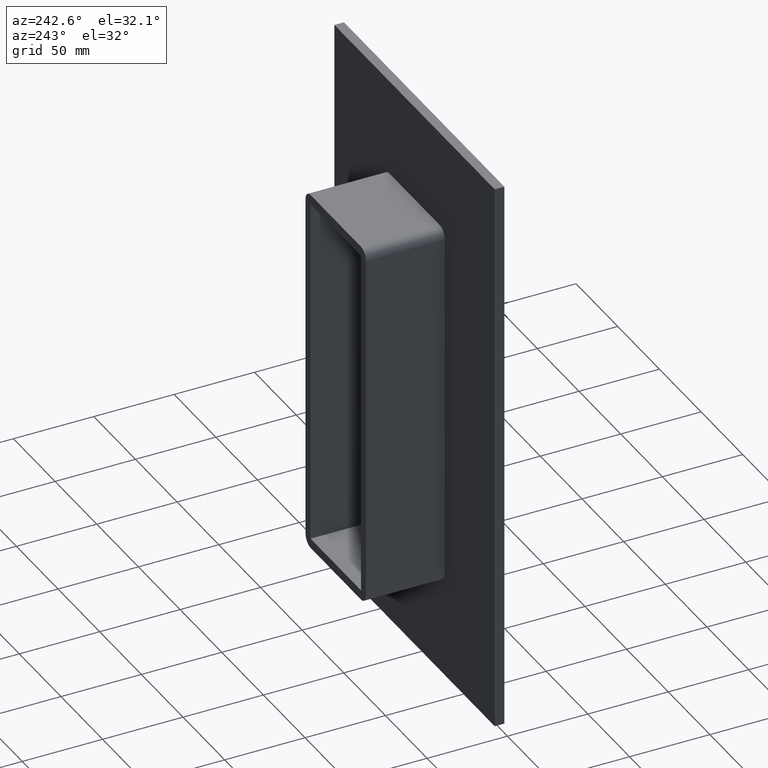
[diagram: clean part render]
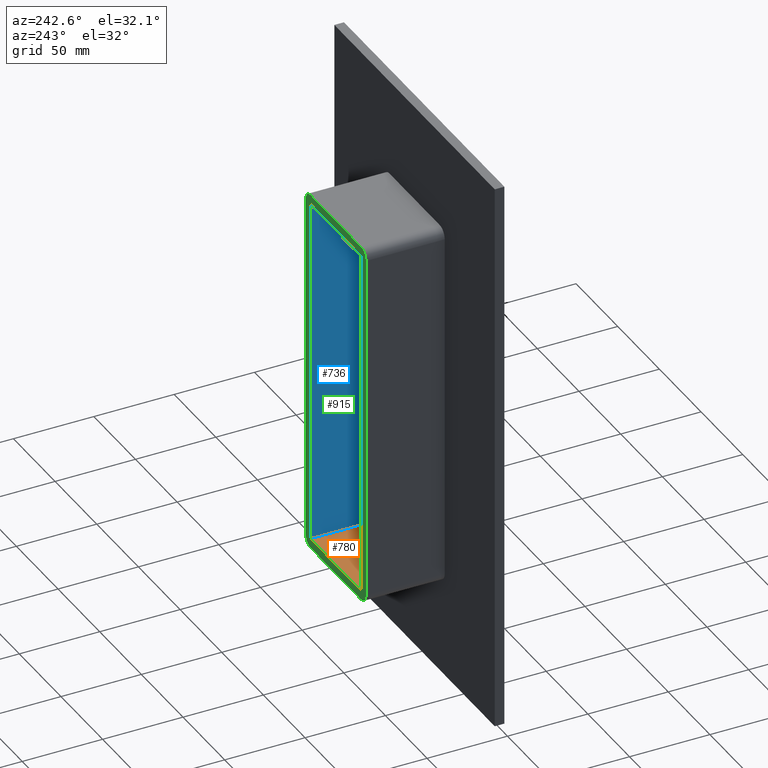
[diagram: same view with three faces highlighted in distinct colors, each labeled with its STEP entity id]
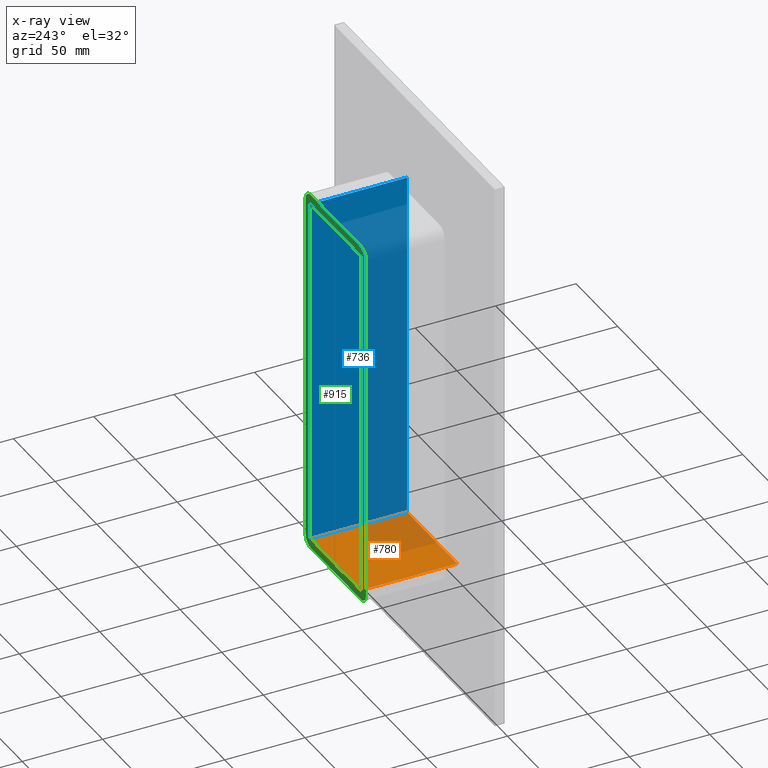
[diagram: x-ray of the same camera — body ghosted, the three highlighted faces saturated]
A machine part, auxiliary view with three faces highlighted in distinct colors.
The next image is the same camera in x-ray (body ghosted, the three faces saturated) — at least one of them is partly hidden behind the body in this view.
Their STEP definitions:

[orange] entity #780 — the highlighted planar face has unit normal (0, 0, -1).
#371=CARTESIAN_POINT('',(-30.249999999999986,-5.0,-109.0));
#372=VERTEX_POINT('',#371);
#379=CARTESIAN_POINT('',(-30.249999999999986,55.0,-109.0));
#380=VERTEX_POINT('',#379);
#381=CARTESIAN_POINT('',(-30.249999999999986,-5.0,-109.0));
#382=DIRECTION('',(0.0,1.0,0.0));
#383=VECTOR('',#382,60.0);
#384=LINE('',#381,#383);
#385=EDGE_CURVE('',#372,#380,#384,.T.);
#712=CARTESIAN_POINT('',(30.250000000000004,55.0,-109.0));
#713=VERTEX_POINT('',#712);
#720=CARTESIAN_POINT('',(30.250000000000004,-5.0,-109.0));
#721=VERTEX_POINT('',#720);
#722=CARTESIAN_POINT('',(30.250000000000004,55.0,-109.0));
#723=DIRECTION('',(0.0,-1.0,0.0));
#724=VECTOR('',#723,60.0);
#725=LINE('',#722,#724);
#726=EDGE_CURVE('',#713,#721,#725,.T.);
#759=CARTESIAN_POINT('',(30.250000000000004,0.0,-109.0));
#760=DIRECTION('',(0.0,0.0,-1.0));
#761=DIRECTION('',(-1.0,0.0,0.0));
#762=AXIS2_PLACEMENT_3D('',#759,#760,#761);
#763=PLANE('',#762);
#764=ORIENTED_EDGE('',*,*,#385,.F.);
#765=CARTESIAN_POINT('',(30.250000000000004,-5.0,-109.0));
#766=DIRECTION('',(-1.0,0.0,0.0));
#767=VECTOR('',#766,60.499999999999986);
#768=LINE('',#765,#767);
#769=EDGE_CURVE('',#721,#372,#768,.T.);
#770=ORIENTED_EDGE('',*,*,#769,.F.);
#771=ORIENTED_EDGE('',*,*,#726,.F.);
#772=CARTESIAN_POINT('',(-30.249999999999986,55.0,-109.0));
#773=DIRECTION('',(1.0,0.0,0.0));
#774=VECTOR('',#773,60.499999999999986);
#775=LINE('',#772,#774);
#776=EDGE_CURVE('',#380,#713,#775,.T.);
#777=ORIENTED_EDGE('',*,*,#776,.F.);
#778=EDGE_LOOP('',(#764,#770,#771,#777));
#779=FACE_OUTER_BOUND('',#778,.T.);
#780=ADVANCED_FACE('',(#779),#763,.F.);

[blue] entity #736 — the highlighted planar face has unit normal (1, 0, 0).
#697=CARTESIAN_POINT('',(30.250000000000004,0.0,109.00000000000003));
#698=DIRECTION('',(1.0,0.0,0.0));
#699=DIRECTION('',(0.0,0.0,-1.0));
#700=AXIS2_PLACEMENT_3D('',#697,#698,#699);
#701=PLANE('',#700);
#702=CARTESIAN_POINT('',(30.250000000000004,-5.0,109.00000000000004));
#703=VERTEX_POINT('',#702);
#704=CARTESIAN_POINT('',(30.250000000000004,55.0,109.00000000000004));
#705=VERTEX_POINT('',#704);
#706=CARTESIAN_POINT('',(30.250000000000004,-5.0,109.00000000000003));
#707=DIRECTION('',(0.0,1.0,0.0));
#708=VECTOR('',#707,60.0);
#709=LINE('',#706,#708);
#710=EDGE_CURVE('',#703,#705,#709,.T.);
#711=ORIENTED_EDGE('',*,*,#710,.T.);
#712=CARTESIAN_POINT('',(30.250000000000004,55.0,-109.0));
#713=VERTEX_POINT('',#712);
#714=CARTESIAN_POINT('',(30.250000000000004,55.0,-108.99999999999997));
#715=DIRECTION('',(0.0,0.0,1.0));
#716=VECTOR('',#715,218.0);
#717=LINE('',#714,#716);
#718=EDGE_CURVE('',#713,#705,#717,.T.);
#719=ORIENTED_EDGE('',*,*,#718,.F.);
#720=CARTESIAN_POINT('',(30.250000000000004,-5.0,-109.0));
#721=VERTEX_POINT('',#720);
#722=CARTESIAN_POINT('',(30.250000000000004,55.0,-109.0));
#723=DIRECTION('',(0.0,-1.0,0.0));
#724=VECTOR('',#723,60.0);
#725=LINE('',#722,#724);
#726=EDGE_CURVE('',#713,#721,#725,.T.);
#727=ORIENTED_EDGE('',*,*,#726,.T.);
#728=CARTESIAN_POINT('',(30.250000000000004,-5.0,109.00000000000004));
#729=DIRECTION('',(0.0,0.0,-1.0));
#730=VECTOR('',#729,218.0);
#731=LINE('',#728,#730);
#732=EDGE_CURVE('',#703,#721,#731,.T.);
#733=ORIENTED_EDGE('',*,*,#732,.F.);
#734=EDGE_LOOP('',(#711,#719,#727,#733));
#735=FACE_OUTER_BOUND('',#734,.T.);
#736=ADVANCED_FACE('',(#735),#701,.F.);

[green] entity #915 — the highlighted planar face has unit normal (0, 1, 0).
#363=CARTESIAN_POINT('',(-30.249999999999986,55.0,109.00000000000004));
#364=VERTEX_POINT('',#363);
#379=CARTESIAN_POINT('',(-30.249999999999986,55.0,-109.0));
#380=VERTEX_POINT('',#379);
#387=CARTESIAN_POINT('',(-30.249999999999986,55.0,109.00000000000001));
#388=DIRECTION('',(0.0,0.0,-1.0));
#389=VECTOR('',#388,218.0);
#390=LINE('',#387,#389);
#391=EDGE_CURVE('',#364,#380,#390,.T.);
#434=CARTESIAN_POINT('',(-36.25,55.0,-109.00000000000003));
#435=VERTEX_POINT('',#434);
#442=CARTESIAN_POINT('',(-30.249999999999986,55.0,-115.0));
#443=VERTEX_POINT('',#442);
#444=CARTESIAN_POINT('',(-30.249999999999986,55.0,-108.99999999999999));
#445=DIRECTION('',(0.0,1.0,0.0));
#446=DIRECTION('',(0.0,0.0,-1.0));
#447=AXIS2_PLACEMENT_3D('',#444,#445,#446);
#448=CIRCLE('',#447,6.000000000000014);
#449=EDGE_CURVE('',#443,#435,#448,.T.);
#490=CARTESIAN_POINT('',(-36.25,55.0,109.00000000000006));
#491=VERTEX_POINT('',#490);
#498=CARTESIAN_POINT('',(-36.25,55.0,-109.00000000000003));
#499=DIRECTION('',(0.0,0.0,1.0));
#500=VECTOR('',#499,218.00000000000009);
#501=LINE('',#498,#500);
#502=EDGE_CURVE('',#435,#491,#501,.T.);
#563=CARTESIAN_POINT('',(-30.249999999999986,55.0,115.00000000000003));
#564=VERTEX_POINT('',#563);
#571=CARTESIAN_POINT('',(-30.249999999999986,55.0,109.00000000000006));
#572=DIRECTION('',(0.0,1.0,0.0));
#573=DIRECTION('',(-1.0,0.0,0.0));
#574=AXIS2_PLACEMENT_3D('',#571,#572,#573);
#575=CIRCLE('',#574,6.000000000000014);
#576=EDGE_CURVE('',#491,#564,#575,.T.);
#637=CARTESIAN_POINT('',(30.249999999999986,55.0,115.00000000000003));
#638=VERTEX_POINT('',#637);
#645=CARTESIAN_POINT('',(-30.249999999999986,55.0,115.00000000000003));
#646=DIRECTION('',(1.0,0.0,0.0));
#647=VECTOR('',#646,60.499999999999972);
#648=LINE('',#645,#647);
#649=EDGE_CURVE('',#564,#638,#648,.T.);
#704=CARTESIAN_POINT('',(30.250000000000004,55.0,109.00000000000004));
#705=VERTEX_POINT('',#704);
#712=CARTESIAN_POINT('',(30.250000000000004,55.0,-109.0));
#713=VERTEX_POINT('',#712);
#714=CARTESIAN_POINT('',(30.250000000000004,55.0,-108.99999999999997));
#715=DIRECTION('',(0.0,0.0,1.0));
#716=VECTOR('',#715,218.0);
#717=LINE('',#714,#716);
#718=EDGE_CURVE('',#713,#705,#717,.T.);
#743=CARTESIAN_POINT('',(30.250000000000007,55.0,109.00000000000003));
#744=DIRECTION('',(-1.0,0.0,0.0));
#745=VECTOR('',#744,60.499999999999993);
#746=LINE('',#743,#745);
#747=EDGE_CURVE('',#705,#364,#746,.T.);
#772=CARTESIAN_POINT('',(-30.249999999999986,55.0,-109.0));
#773=DIRECTION('',(1.0,0.0,0.0));
#774=VECTOR('',#773,60.499999999999986);
#775=LINE('',#772,#774);
#776=EDGE_CURVE('',#380,#713,#775,.T.);
#809=CARTESIAN_POINT('',(36.25,55.0,109.00000000000006));
#810=VERTEX_POINT('',#809);
#817=CARTESIAN_POINT('',(30.249999999999986,55.0,109.00000000000006));
#818=DIRECTION('',(0.0,1.0,0.0));
#819=DIRECTION('',(0.0,0.0,1.0));
#820=AXIS2_PLACEMENT_3D('',#817,#818,#819);
#821=CIRCLE('',#820,6.000000000000014);
#822=EDGE_CURVE('',#638,#810,#821,.T.);
#835=CARTESIAN_POINT('',(30.249999999999986,55.0,-115.0));
#836=VERTEX_POINT('',#835);
#837=CARTESIAN_POINT('',(30.249999999999986,55.0,-114.99999999999999));
#838=DIRECTION('',(-1.0,0.0,0.0));
#839=VECTOR('',#838,60.499999999999972);
#840=LINE('',#837,#839);
#841=EDGE_CURVE('',#836,#443,#840,.T.);
#859=CARTESIAN_POINT('',(36.25,55.0,-109.00000000000003));
#860=VERTEX_POINT('',#859);
#861=CARTESIAN_POINT('',(30.249999999999986,55.0,-108.99999999999999));
#862=DIRECTION('',(0.0,1.0,0.0));
#863=DIRECTION('',(1.0,0.0,0.0));
#864=AXIS2_PLACEMENT_3D('',#861,#862,#863);
#865=CIRCLE('',#864,6.000000000000014);
#866=EDGE_CURVE('',#860,#836,#865,.T.);
#884=CARTESIAN_POINT('',(36.25,55.0,109.00000000000006));
#885=DIRECTION('',(0.0,0.0,-1.0));
#886=VECTOR('',#885,218.00000000000009);
#887=LINE('',#884,#886);
#888=EDGE_CURVE('',#810,#860,#887,.T.);
#894=CARTESIAN_POINT('',(0.0,55.0,3.073023E-014));
#895=DIRECTION('',(0.0,1.0,0.0));
#896=DIRECTION('',(0.0,0.0,1.0));
#897=AXIS2_PLACEMENT_3D('',#894,#895,#896);
#898=PLANE('',#897);
#899=ORIENTED_EDGE('',*,*,#888,.T.);
#900=ORIENTED_EDGE('',*,*,#866,.T.);
#901=ORIENTED_EDGE('',*,*,#841,.T.);
#902=ORIENTED_EDGE('',*,*,#449,.T.);
#903=ORIENTED_EDGE('',*,*,#502,.T.);
#904=ORIENTED_EDGE('',*,*,#576,.T.);
#905=ORIENTED_EDGE('',*,*,#649,.T.);
#906=ORIENTED_EDGE('',*,*,#822,.T.);
#907=EDGE_LOOP('',(#899,#900,#901,#902,#903,#904,#905,#906));
#908=FACE_OUTER_BOUND('',#907,.T.);
#909=ORIENTED_EDGE('',*,*,#718,.T.);
#910=ORIENTED_EDGE('',*,*,#747,.T.);
#911=ORIENTED_EDGE('',*,*,#391,.T.);
#912=ORIENTED_EDGE('',*,*,#776,.T.);
#913=EDGE_LOOP('',(#909,#910,#911,#912));
#914=FACE_BOUND('',#913,.T.);
#915=ADVANCED_FACE('',(#908,#914),#898,.T.);